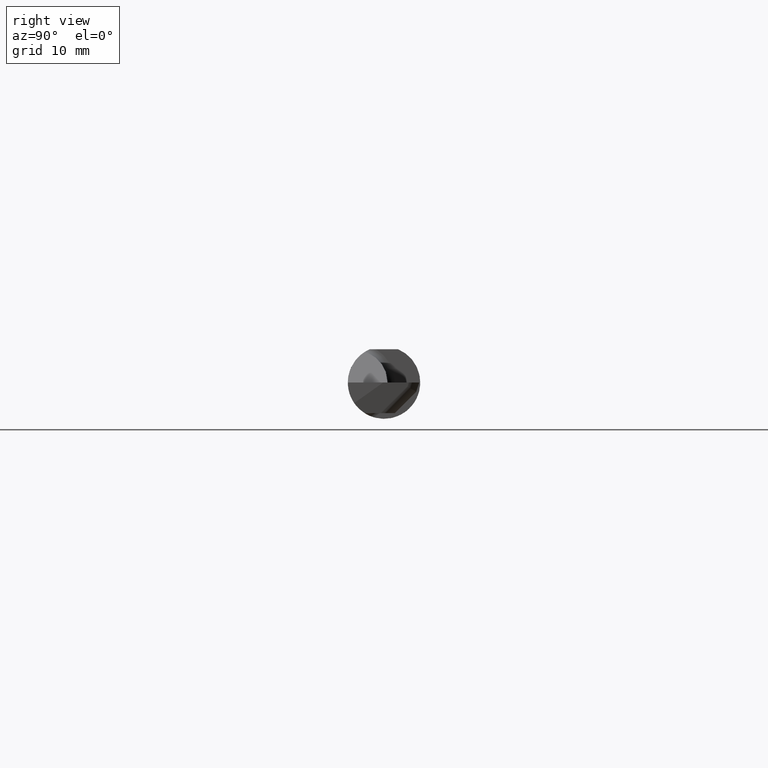
[diagram: clean part render]
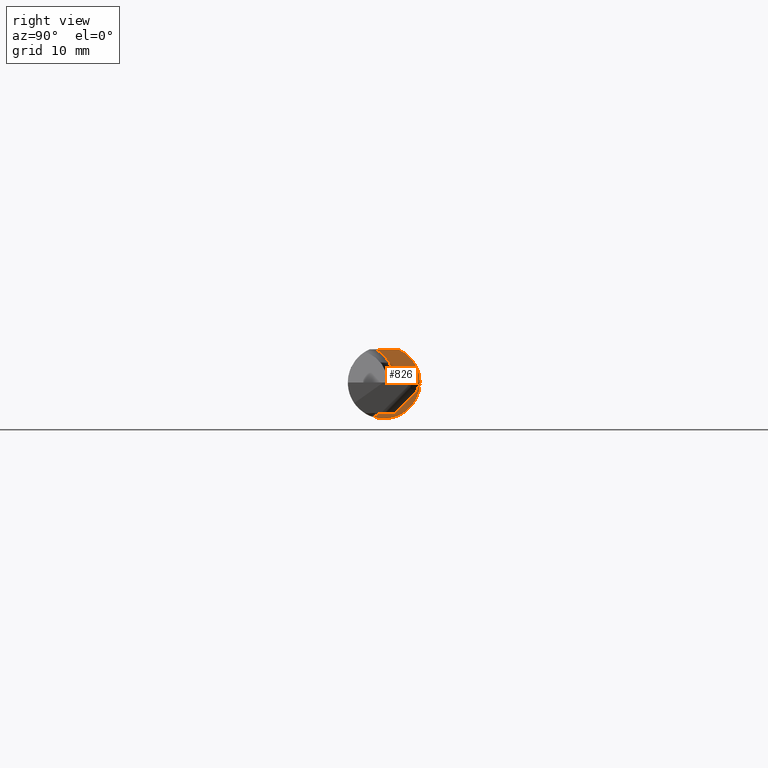
[diagram: same view with one face highlighted and labeled with its STEP entity id]
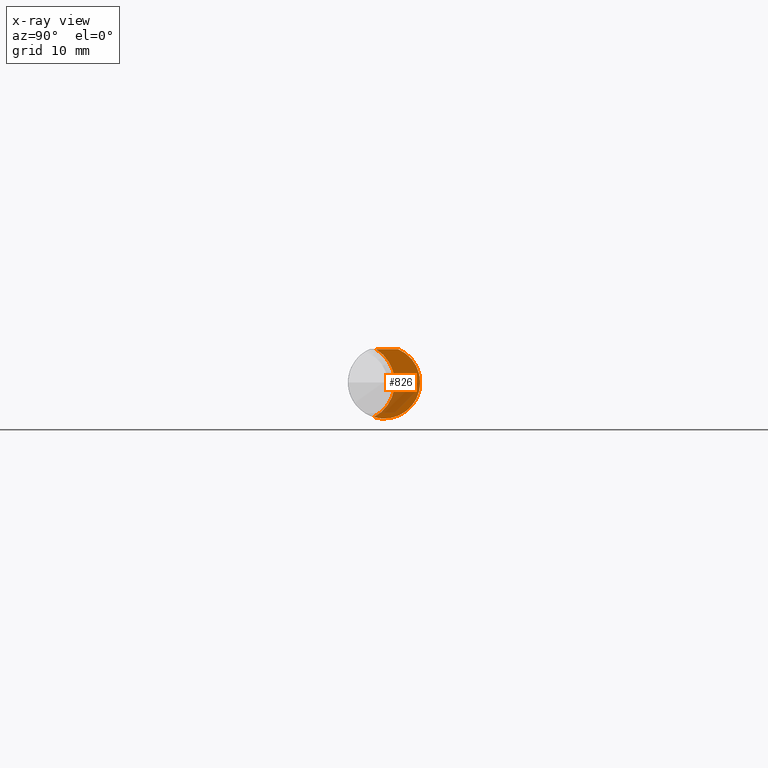
[diagram: x-ray of the same camera — body ghosted, the highlighted face saturated]
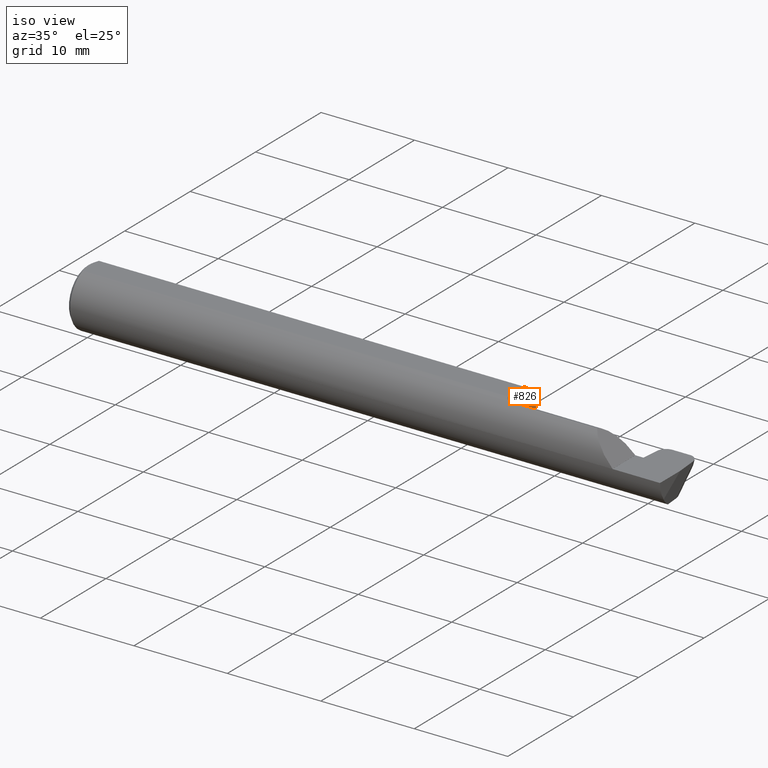
[diagram: same view with one face highlighted and labeled with its STEP entity id]
A machine part, right view. The second image highlights one B-rep face of the part: STEP entity #826.
The next image is the same camera in x-ray: the body ghosted, the highlighted face saturated — about 34% of this face is hidden behind the body in this view.
A second angle (iso view) of the same face is appended — the face is thin or edge-on in the first view.
In plain terms, the highlighted planar face has unit normal (1, 0, 0).
Its self-contained STEP definition (entity closure, byte-faithful):
#34 = EDGE_LOOP ( 'NONE', ( #250, #855, #106 ) ) ;
#47 = VERTEX_POINT ( 'NONE', #351 ) ;
#81 = DIRECTION ( 'NONE',  ( 0.000000000000000000, 0.000000000000000000, -1.000000000000000000 ) ) ;
#106 = ORIENTED_EDGE ( 'NONE', *, *, #840, .T. ) ;
#108 = CARTESIAN_POINT ( 'NONE',  ( 1.804000000000000270, -0.02689594796630704471, 0.1148500000000000076 ) ) ;
#159 = CARTESIAN_POINT ( 'NONE',  ( 1.804000000000000270, 0.2121500000000000608, 0.000000000000000000 ) ) ;
#214 = CARTESIAN_POINT ( 'NONE',  ( 1.804000000000000270, -0.09784999999999999254, 0.000000000000000000 ) ) ;
#250 = ORIENTED_EDGE ( 'NONE', *, *, #328, .T. ) ;
#261 = CIRCLE ( 'NONE', #648, 0.1350000000000000366 ) ;
#262 = CIRCLE ( 'NONE', #771, 0.1248500000000000026 ) ;
#297 = PLANE ( 'NONE',  #723 ) ;
#328 = EDGE_CURVE ( 'NONE', #47, #563, #342, .T. ) ;
#333 = EDGE_CURVE ( 'NONE', #563, #741, #261, .T. ) ;
#342 = LINE ( 'NONE', #426, #421 ) ;
#351 = CARTESIAN_POINT ( 'NONE',  ( 1.804000000000000270, 0.04895916665957456698, 0.1148500000000000076 ) ) ;
#421 = VECTOR ( 'NONE', #603, 39.37007874015748143 ) ;
#426 = CARTESIAN_POINT ( 'NONE',  ( 1.804000000000000270, 0.1000000000000000056, 0.1148500000000000076 ) ) ;
#427 = FACE_OUTER_BOUND ( 'NONE', #34, .T. ) ;
#493 = CARTESIAN_POINT ( 'NONE',  ( 1.804000000000000270, -0.03544785385794579219, -0.1197120384792846048 ) ) ;
#563 = VERTEX_POINT ( 'NONE', #108 ) ;
#565 = DIRECTION ( 'NONE',  ( 1.000000000000000000, 0.000000000000000000, 0.000000000000000000 ) ) ;
#568 = CARTESIAN_POINT ( 'NONE',  ( 1.804000000000000270, 0.000000000000000000, 0.000000000000000000 ) ) ;
#603 = DIRECTION ( 'NONE',  ( 0.000000000000000000, -1.000000000000000000, 0.000000000000000000 ) ) ;
#648 = AXIS2_PLACEMENT_3D ( 'NONE', #214, #684, #688 ) ;
#684 = DIRECTION ( 'NONE',  ( -1.000000000000000000, -0.000000000000000000, -0.000000000000000000 ) ) ;
#688 = DIRECTION ( 'NONE',  ( 0.000000000000000000, 0.000000000000000000, -1.000000000000000000 ) ) ;
#689 = DIRECTION ( 'NONE',  ( 1.000000000000000000, 0.000000000000000000, 0.000000000000000000 ) ) ;
#699 = DIRECTION ( 'NONE',  ( 0.000000000000000000, 0.000000000000000000, -1.000000000000000000 ) ) ;
#723 = AXIS2_PLACEMENT_3D ( 'NONE', #159, #689, #81 ) ;
#741 = VERTEX_POINT ( 'NONE', #493 ) ;
#771 = AXIS2_PLACEMENT_3D ( 'NONE', #568, #565, #699 ) ;
#826 = ADVANCED_FACE ( 'NONE', ( #427 ), #297, .T. ) ;
#840 = EDGE_CURVE ( 'NONE', #741, #47, #262, .T. ) ;
#855 = ORIENTED_EDGE ( 'NONE', *, *, #333, .T. ) ;